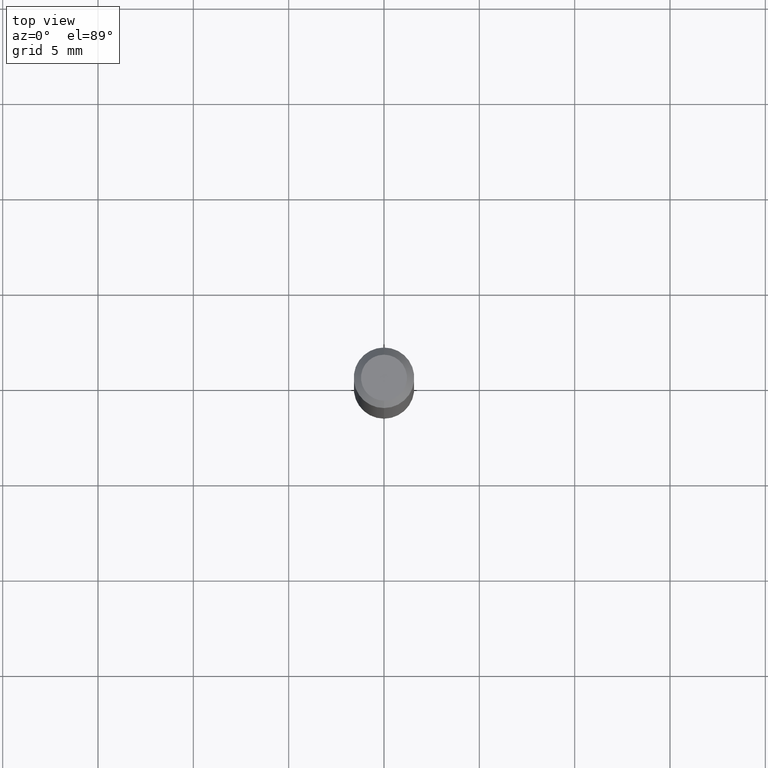
[diagram: clean part render]
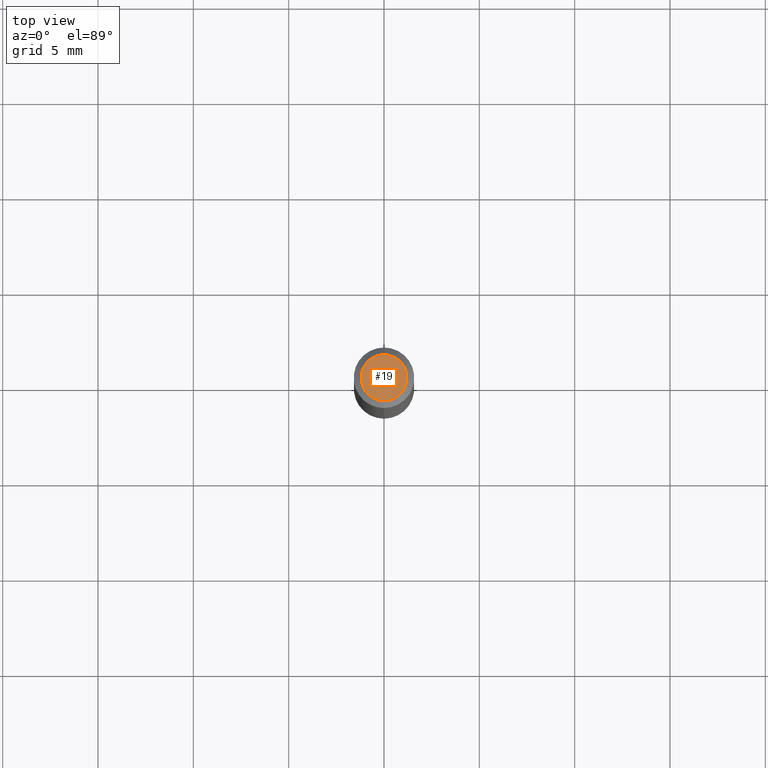
[diagram: same view with one face highlighted and labeled with its STEP entity id]
A machine part, top view. The second image highlights one B-rep face of the part: STEP entity #19.
In plain terms, the highlighted planar face has unit normal (0, -0, -1).
Its self-contained STEP definition (entity closure, byte-faithful):
#19 = ADVANCED_FACE ( 'NONE', ( #101 ), #338, .F. ) ;
#23 = CIRCLE ( 'NONE', #129, 0.04749999999999999362 ) ;
#40 = CARTESIAN_POINT ( 'NONE',  ( 8.024699591735033216E-45, -1.145720432106038459E-30, -3.281465122925178518E-16 ) ) ;
#64 = ORIENTED_EDGE ( 'NONE', *, *, #489, .T. ) ;
#89 = VERTEX_POINT ( 'NONE', #506 ) ;
#101 = FACE_OUTER_BOUND ( 'NONE', #371, .T. ) ;
#129 = AXIS2_PLACEMENT_3D ( 'NONE', #40, #419, #155 ) ;
#155 = DIRECTION ( 'NONE',  ( -6.982962677686266711E-15, -1.000000000000000000, 3.491490505572446944E-15 ) ) ;
#160 = DIRECTION ( 'NONE',  ( -2.445462405092277740E-29, 3.491490505572446944E-15, 1.000000000000000000 ) ) ;
#203 = VERTEX_POINT ( 'NONE', #332 ) ;
#205 = CIRCLE ( 'NONE', #333, 0.04749999999999999362 ) ;
#275 = AXIS2_PLACEMENT_3D ( 'NONE', #342, #493, #487 ) ;
#332 = CARTESIAN_POINT ( 'NONE',  ( 3.840629472727447874E-16, 0.04749999999999999362, -4.939923113072090255E-16 ) ) ;
#333 = AXIS2_PLACEMENT_3D ( 'NONE', #384, #160, #390 ) ;
#338 = PLANE ( 'NONE',  #275 ) ;
#340 = EDGE_CURVE ( 'NONE', #203, #89, #205, .T. ) ;
#342 = CARTESIAN_POINT ( 'NONE',  ( 3.316907271900976096E-16, 0.04749999999999999362, -3.299190551609501735E-16 ) ) ;
#371 = EDGE_LOOP ( 'NONE', ( #512, #64 ) ) ;
#384 = CARTESIAN_POINT ( 'NONE',  ( 8.024699591735033216E-45, -1.145720432106038459E-30, -3.281465122925178518E-16 ) ) ;
#390 = DIRECTION ( 'NONE',  ( -6.982962677686266711E-15, -1.000000000000000000, 3.491490505572446944E-15 ) ) ;
#419 = DIRECTION ( 'NONE',  ( -2.445462405092277740E-29, 3.491490505572446944E-15, 1.000000000000000000 ) ) ;
#487 = DIRECTION ( 'NONE',  ( 6.982962677686265922E-15, 1.000000000000000000, -3.491490505572446944E-15 ) ) ;
#489 = EDGE_CURVE ( 'NONE', #89, #203, #23, .T. ) ;
#493 = DIRECTION ( 'NONE',  ( 2.445462405092277460E-29, -3.491490505572446944E-15, -1.000000000000000000 ) ) ;
#506 = CARTESIAN_POINT ( 'NONE',  ( -3.773273898774340269E-16, -0.04749999999999999362, -1.623007132778266536E-16 ) ) ;
#512 = ORIENTED_EDGE ( 'NONE', *, *, #340, .T. ) ;